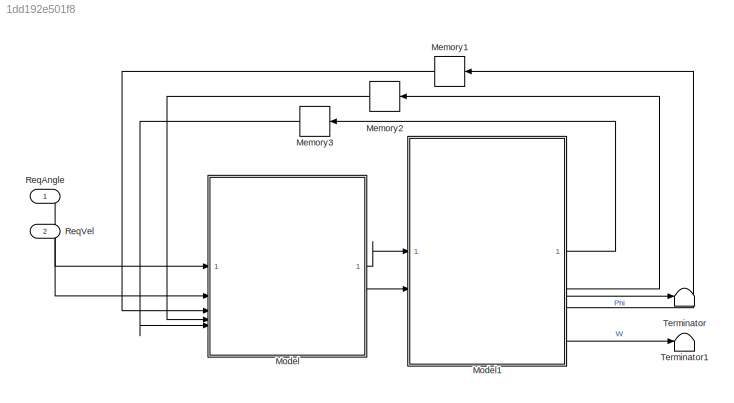
MODEL slx_1dd192e501f8
KIND model
CONFIG AbsTol = auto
CONFIG EnableMultiTasking = off
CONFIG FixedStep = auto
CONFIG MaxStep = auto
CONFIG MinStep = auto
CONFIG RelTol = 1e-3
CONFIG SampleTimeConstraint = Unconstrained
CONFIG SolverName = ode1be
CONFIG StartTime = 0.0
CONFIG StopTime = 10
BLOCK [Memory] Memory1
  NameLocation = top
BLOCK [Memory] Memory2
  NameLocation = top
BLOCK [Memory] Memory3
  NameLocation = top
BLOCK [ModelReference] Model
  ModelNameDialog = MCU_M.slx
  ModelReferenceVersion = 1.7
BLOCK [ModelReference] Model1
  ModelNameDialog = ControlOblectSUBMod.slx
  ModelReferenceVersion = 1.13
BLOCK [Inport] ReqAngle
BLOCK [Inport] ReqVel
  Port = 2
BLOCK [Terminator] Terminator
BLOCK [Terminator] Terminator1
LINE Memory1:1 -> Model:3
LINE Memory2:1 -> Model:4
LINE Memory3:1 -> Model:5
LINE Model1:1 -> Memory3:1
LINE Model1:2 -> Memory2:1
LINE Model1:3 -> Memory1:1
LINE Model1:4 -> Terminator:1
LINE Model1:5 -> Terminator1:1
LINE Model:1 -> Model1:1
LINE Model:2 -> Model1:2
LINE ReqAngle:1 -> Model:1
LINE ReqVel:1 -> Model:2
